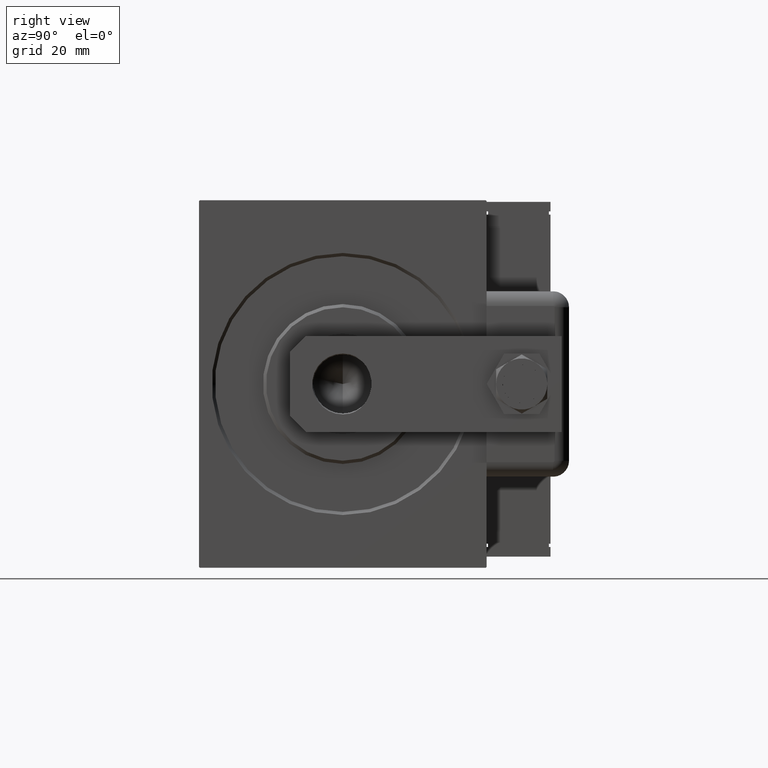
[diagram: clean part render]
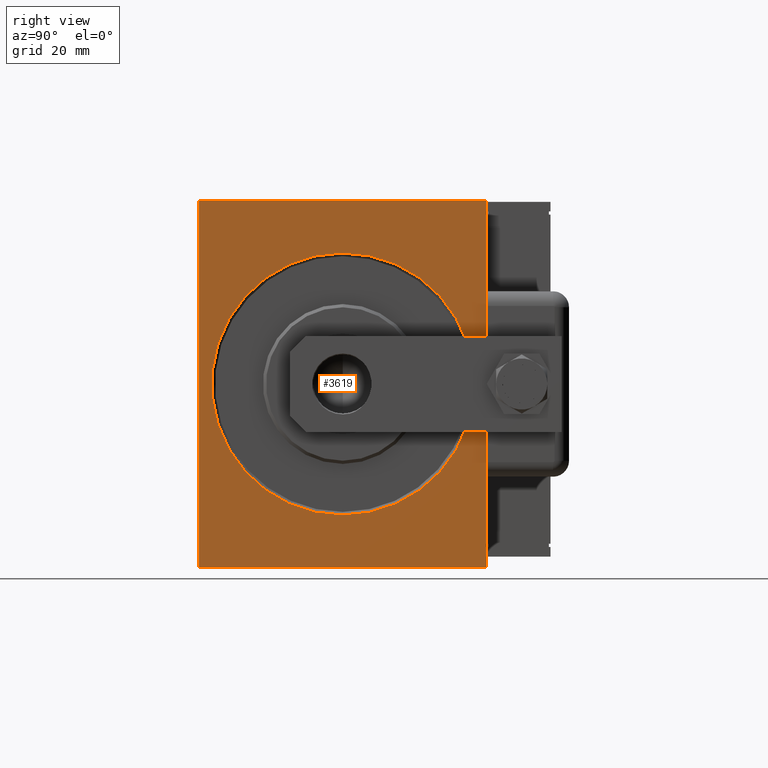
[diagram: same view with one face highlighted and labeled with its STEP entity id]
A machine part, right view. The second image highlights one B-rep face of the part: STEP entity #3619.
In plain terms, the highlighted planar face has unit normal (-1, 0, 0).
Its self-contained STEP definition (entity closure, byte-faithful):
#1128 = CARTESIAN_POINT ( 'NONE',  ( 0.000000000000000000, 0.000000000000000000, 41.00000000000000711 ) ) ;
#1159 = EDGE_CURVE ( 'NONE', #5015, #2826, #24204, .T. ) ;
#1338 = CARTESIAN_POINT ( 'NONE',  ( 0.000000000000000000, 44.70000000000001705, 57.50000000000001421 ) ) ;
#1626 = DIRECTION ( 'NONE',  ( -0.000000000000000000, 0.7071067811865393571, -0.7071067811865556774 ) ) ;
#1764 = VECTOR ( 'NONE', #52602, 1000.000000000000000 ) ;
#2826 = VERTEX_POINT ( 'NONE', #42770 ) ;
#3601 = VECTOR ( 'NONE', #14830, 1000.000000000000000 ) ;
#3619 = ADVANCED_FACE ( 'NONE', ( #9357, #17389 ), #9055, .F. ) ;
#4742 = VECTOR ( 'NONE', #14177, 1000.000000000000114 ) ;
#4985 = CARTESIAN_POINT ( 'NONE',  ( 0.000000000000000000, 45.00000000000001421, -57.20000000000004547 ) ) ;
#5015 = VERTEX_POINT ( 'NONE', #22587 ) ;
#5794 = DIRECTION ( 'NONE',  ( -0.000000000000000000, 0.7071067811865474617, 0.7071067811865474617 ) ) ;
#6343 = EDGE_CURVE ( 'NONE', #18728, #2826, #51108, .T. ) ;
#6660 = DIRECTION ( 'NONE',  ( 1.000000000000000000, 0.000000000000000000, -0.000000000000000000 ) ) ;
#7383 = ORIENTED_EDGE ( 'NONE', *, *, #30073, .T. ) ;
#7640 = VERTEX_POINT ( 'NONE', #47739 ) ;
#8305 = EDGE_LOOP ( 'NONE', ( #19917, #27342 ) ) ;
#9055 = PLANE ( 'NONE',  #49197 ) ;
#9251 = EDGE_CURVE ( 'NONE', #20899, #32373, #11380, .T. ) ;
#9357 = FACE_BOUND ( 'NONE', #8305, .T. ) ;
#9707 = EDGE_CURVE ( 'NONE', #18728, #7640, #18635, .T. ) ;
#10085 = LINE ( 'NONE', #55490, #3601 ) ;
#10446 = DIRECTION ( 'NONE',  ( 0.000000000000000000, 0.000000000000000000, 1.000000000000000000 ) ) ;
#11109 = DIRECTION ( 'NONE',  ( 0.000000000000000000, 0.000000000000000000, -1.000000000000000000 ) ) ;
#11181 = AXIS2_PLACEMENT_3D ( 'NONE', #55861, #23818, #41620 ) ;
#11380 = CIRCLE ( 'NONE', #52172, 41.00000000000000711 ) ;
#14177 = DIRECTION ( 'NONE',  ( 0.000000000000000000, -0.7071067811865474617, 0.7071067811865474617 ) ) ;
#14830 = DIRECTION ( 'NONE',  ( 0.000000000000000000, -1.000000000000000000, -2.312964634635742957E-16 ) ) ;
#16448 = CARTESIAN_POINT ( 'NONE',  ( 0.000000000000000000, 0.000000000000000000, 0.000000000000000000 ) ) ;
#16464 = EDGE_CURVE ( 'NONE', #53073, #43551, #23613, .T. ) ;
#16844 = CARTESIAN_POINT ( 'NONE',  ( 0.000000000000000000, 45.00000000000001421, -57.20000000000004547 ) ) ;
#17389 = FACE_OUTER_BOUND ( 'NONE', #30530, .T. ) ;
#18635 = LINE ( 'NONE', #4985, #44534 ) ;
#18728 = VERTEX_POINT ( 'NONE', #16844 ) ;
#18797 = LINE ( 'NONE', #57058, #1764 ) ;
#19917 = ORIENTED_EDGE ( 'NONE', *, *, #9251, .T. ) ;
#20694 = VECTOR ( 'NONE', #1626, 1000.000000000000000 ) ;
#20899 = VERTEX_POINT ( 'NONE', #1128 ) ;
#21517 = EDGE_CURVE ( 'NONE', #53073, #57978, #56547, .T. ) ;
#22317 = CARTESIAN_POINT ( 'NONE',  ( 0.000000000000000000, -44.70000000000003126, -57.50000000000002132 ) ) ;
#22587 = CARTESIAN_POINT ( 'NONE',  ( 0.000000000000000000, 44.70000000000001705, 57.50000000000001421 ) ) ;
#23507 = CARTESIAN_POINT ( 'NONE',  ( 0.000000000000000000, 45.00000000000001421, -57.50000000000000711 ) ) ;
#23613 = LINE ( 'NONE', #41711, #30600 ) ;
#23795 = ORIENTED_EDGE ( 'NONE', *, *, #58481, .F. ) ;
#23818 = DIRECTION ( 'NONE',  ( 1.000000000000000000, 0.000000000000000000, -0.000000000000000000 ) ) ;
#24204 = LINE ( 'NONE', #1338, #20694 ) ;
#26586 = CARTESIAN_POINT ( 'NONE',  ( 0.000000000000000000, -45.00000000000000000, 57.20000000000000284 ) ) ;
#27165 = DIRECTION ( 'NONE',  ( -0.000000000000000000, 0.000000000000000000, -1.000000000000000000 ) ) ;
#27342 = ORIENTED_EDGE ( 'NONE', *, *, #58205, .T. ) ;
#29832 = CARTESIAN_POINT ( 'NONE',  ( 0.000000000000000000, -45.00000000000000000, 57.49999999999999289 ) ) ;
#30073 = EDGE_CURVE ( 'NONE', #37352, #57978, #49776, .T. ) ;
#30530 = EDGE_LOOP ( 'NONE', ( #23795, #42530, #35185, #43472, #51846, #7383, #47779, #39365 ) ) ;
#30600 = VECTOR ( 'NONE', #5794, 1000.000000000000114 ) ;
#31990 = DIRECTION ( 'NONE',  ( -0.000000000000000000, -0.7071067811865474617, -0.7071067811865474617 ) ) ;
#32373 = VERTEX_POINT ( 'NONE', #51231 ) ;
#35185 = ORIENTED_EDGE ( 'NONE', *, *, #6343, .F. ) ;
#36777 = CARTESIAN_POINT ( 'NONE',  ( 0.000000000000000000, -45.00000000000000000, -57.20000000000003126 ) ) ;
#37352 = VERTEX_POINT ( 'NONE', #22317 ) ;
#39365 = ORIENTED_EDGE ( 'NONE', *, *, #16464, .T. ) ;
#41620 = DIRECTION ( 'NONE',  ( 0.000000000000000000, 0.000000000000000000, -1.000000000000000000 ) ) ;
#41711 = CARTESIAN_POINT ( 'NONE',  ( 0.000000000000000000, -45.00000000000000000, 57.20000000000000284 ) ) ;
#42530 = ORIENTED_EDGE ( 'NONE', *, *, #1159, .T. ) ;
#42770 = CARTESIAN_POINT ( 'NONE',  ( 0.000000000000000000, 45.00000000000001421, 57.19999999999998863 ) ) ;
#43472 = ORIENTED_EDGE ( 'NONE', *, *, #9707, .T. ) ;
#43551 = VERTEX_POINT ( 'NONE', #55565 ) ;
#44390 = DIRECTION ( 'NONE',  ( 1.000000000000000000, 0.000000000000000000, -0.000000000000000000 ) ) ;
#44534 = VECTOR ( 'NONE', #31990, 1000.000000000000114 ) ;
#47739 = CARTESIAN_POINT ( 'NONE',  ( 0.000000000000000000, 44.70000000000001705, -57.50000000000000711 ) ) ;
#47779 = ORIENTED_EDGE ( 'NONE', *, *, #21517, .F. ) ;
#48456 = EDGE_CURVE ( 'NONE', #37352, #7640, #18797, .T. ) ;
#49197 = AXIS2_PLACEMENT_3D ( 'NONE', #53590, #44390, #27165 ) ;
#49776 = LINE ( 'NONE', #54532, #4742 ) ;
#51108 = LINE ( 'NONE', #23507, #52002 ) ;
#51231 = CARTESIAN_POINT ( 'NONE',  ( 0.000000000000000000, 5.021051876504148963E-15, -41.00000000000000711 ) ) ;
#51846 = ORIENTED_EDGE ( 'NONE', *, *, #48456, .F. ) ;
#52002 = VECTOR ( 'NONE', #10446, 1000.000000000000000 ) ;
#52172 = AXIS2_PLACEMENT_3D ( 'NONE', #16448, #6660, #11109 ) ;
#52602 = DIRECTION ( 'NONE',  ( 0.000000000000000000, 1.000000000000000000, 1.541976423090495140E-16 ) ) ;
#53073 = VERTEX_POINT ( 'NONE', #26586 ) ;
#53590 = CARTESIAN_POINT ( 'NONE',  ( 0.000000000000000000, 0.000000000000000000, 0.000000000000000000 ) ) ;
#54532 = CARTESIAN_POINT ( 'NONE',  ( 0.000000000000000000, -44.70000000000003126, -57.50000000000002132 ) ) ;
#54615 = VECTOR ( 'NONE', #56852, 1000.000000000000000 ) ;
#55490 = CARTESIAN_POINT ( 'NONE',  ( 0.000000000000000000, 45.00000000000001421, 57.50000000000001421 ) ) ;
#55565 = CARTESIAN_POINT ( 'NONE',  ( 0.000000000000000000, -44.69999999999997442, 57.49999999999999289 ) ) ;
#55861 = CARTESIAN_POINT ( 'NONE',  ( 0.000000000000000000, 0.000000000000000000, 0.000000000000000000 ) ) ;
#56547 = LINE ( 'NONE', #29832, #54615 ) ;
#56690 = CIRCLE ( 'NONE', #11181, 41.00000000000000711 ) ;
#56852 = DIRECTION ( 'NONE',  ( 0.000000000000000000, 0.000000000000000000, -1.000000000000000000 ) ) ;
#57058 = CARTESIAN_POINT ( 'NONE',  ( 0.000000000000000000, -45.00000000000000000, -57.50000000000002132 ) ) ;
#57978 = VERTEX_POINT ( 'NONE', #36777 ) ;
#58205 = EDGE_CURVE ( 'NONE', #32373, #20899, #56690, .T. ) ;
#58481 = EDGE_CURVE ( 'NONE', #5015, #43551, #10085, .T. ) ;